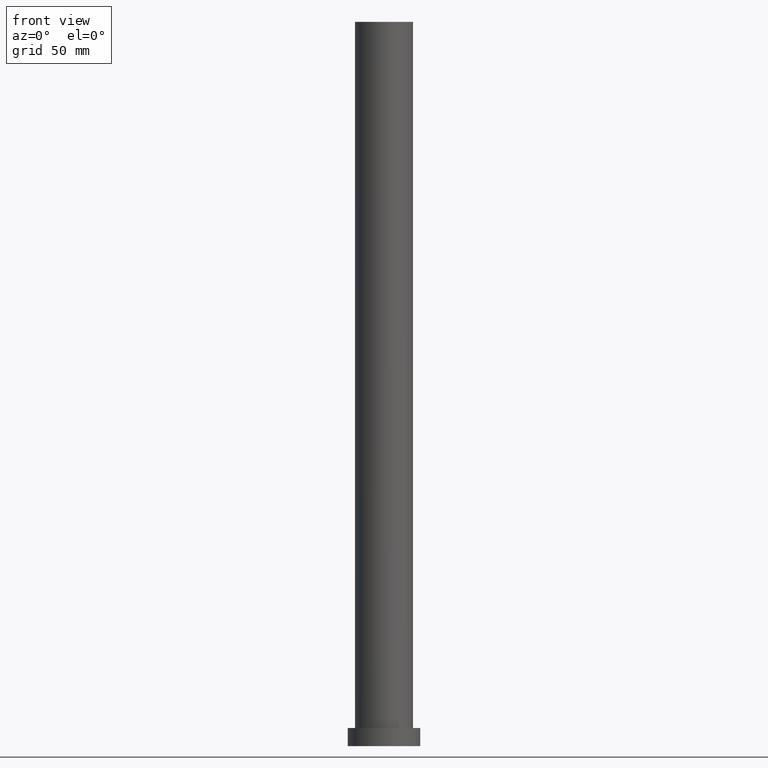
[diagram: clean part render]
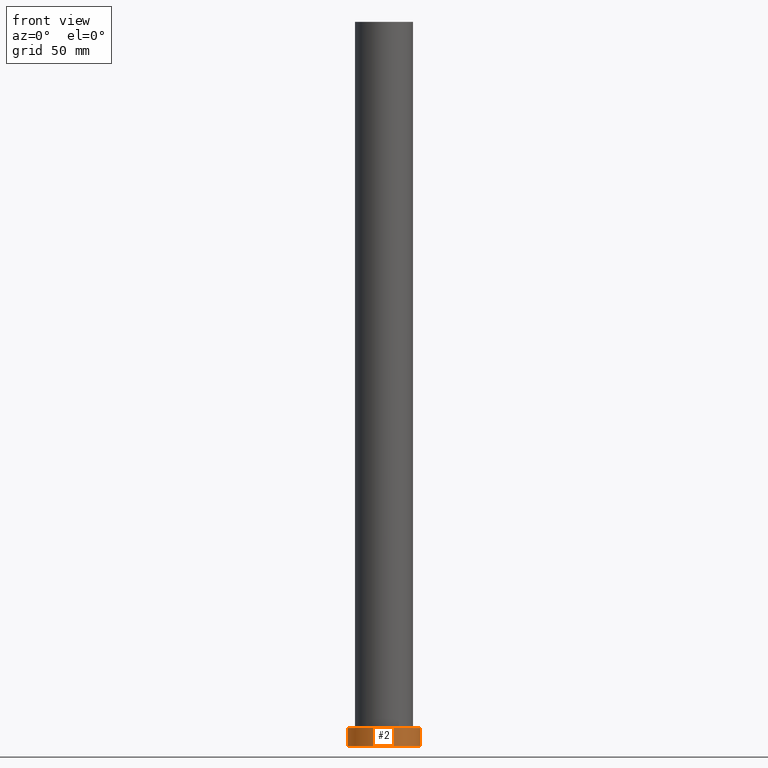
[diagram: same view with one face highlighted and labeled with its STEP entity id]
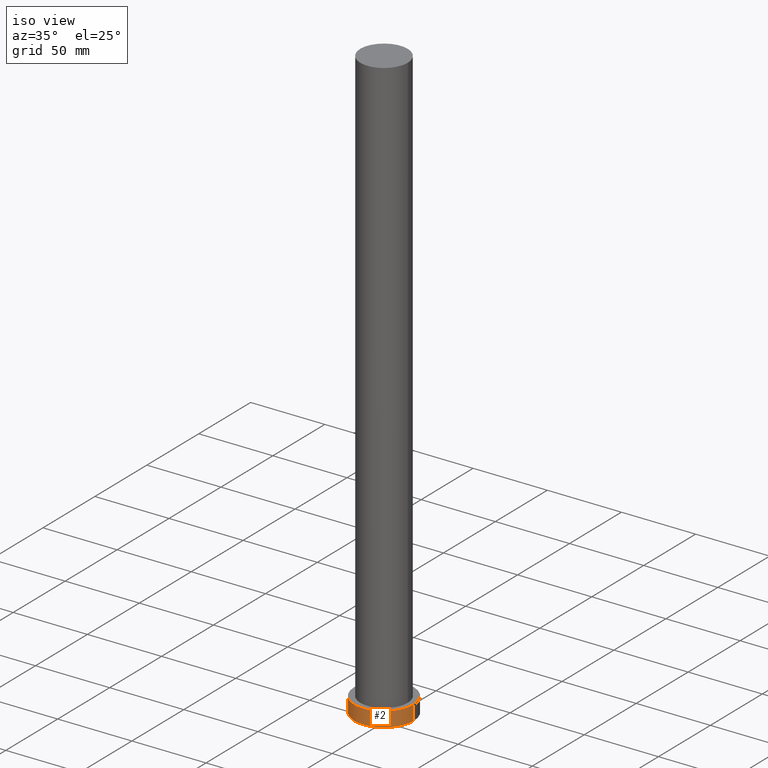
[diagram: same view with one face highlighted and labeled with its STEP entity id]
A machine part, front view. The second image highlights one B-rep face of the part: STEP entity #2.
A second angle (iso view) of the same face is appended — the face is thin or edge-on in the first view.
In plain terms, the highlighted cylindrical surface (edge-blend (fillet) strip) has radius 20 mm, axis along (-0, -0, -1).
Its self-contained STEP definition (entity closure, byte-faithful):
#2 = ADVANCED_FACE ( 'NONE', ( #168 ), #244, .T. ) ;
#9 = ORIENTED_EDGE ( 'NONE', *, *, #22, .F. ) ;
#16 = VECTOR ( 'NONE', #215, 1000.000000000000000 ) ;
#18 = CARTESIAN_POINT ( 'NONE',  ( 20.00000000000000000, 2.449293598294706513E-15, 10.00000000000000000 ) ) ;
#22 = EDGE_CURVE ( 'NONE', #140, #118, #36, .T. ) ;
#31 = CARTESIAN_POINT ( 'NONE',  ( 0.000000000000000000, 0.000000000000000000, 10.00000000000000000 ) ) ;
#36 = CIRCLE ( 'NONE', #136, 20.00000000000000000 ) ;
#40 = EDGE_CURVE ( 'NONE', #140, #159, #96, .T. ) ;
#50 = DIRECTION ( 'NONE',  ( -0.000000000000000000, -0.000000000000000000, -1.000000000000000000 ) ) ;
#52 = EDGE_CURVE ( 'NONE', #118, #171, #182, .T. ) ;
#68 = CARTESIAN_POINT ( 'NONE',  ( 0.000000000000000000, 0.000000000000000000, 0.000000000000000000 ) ) ;
#85 = DIRECTION ( 'NONE',  ( 0.000000000000000000, 0.000000000000000000, 1.000000000000000000 ) ) ;
#96 = LINE ( 'NONE', #250, #16 ) ;
#106 = AXIS2_PLACEMENT_3D ( 'NONE', #68, #85, #150 ) ;
#114 = ORIENTED_EDGE ( 'NONE', *, *, #52, .F. ) ;
#118 = VERTEX_POINT ( 'NONE', #121 ) ;
#121 = CARTESIAN_POINT ( 'NONE',  ( 20.00000000000000000, 2.449293598294706513E-15, 10.00000000000000000 ) ) ;
#136 = AXIS2_PLACEMENT_3D ( 'NONE', #31, #212, #147 ) ;
#140 = VERTEX_POINT ( 'NONE', #169 ) ;
#147 = DIRECTION ( 'NONE',  ( 1.000000000000000000, 0.000000000000000000, 0.000000000000000000 ) ) ;
#150 = DIRECTION ( 'NONE',  ( 1.000000000000000000, 0.000000000000000000, 0.000000000000000000 ) ) ;
#151 = CARTESIAN_POINT ( 'NONE',  ( -20.00000000000000000, 0.000000000000000000, 0.000000000000000000 ) ) ;
#155 = CARTESIAN_POINT ( 'NONE',  ( 0.000000000000000000, 0.000000000000000000, 10.00000000000000000 ) ) ;
#159 = VERTEX_POINT ( 'NONE', #151 ) ;
#168 = FACE_OUTER_BOUND ( 'NONE', #209, .T. ) ;
#169 = CARTESIAN_POINT ( 'NONE',  ( -20.00000000000000000, 0.000000000000000000, 10.00000000000000000 ) ) ;
#171 = VERTEX_POINT ( 'NONE', #246 ) ;
#174 = ORIENTED_EDGE ( 'NONE', *, *, #40, .T. ) ;
#182 = LINE ( 'NONE', #18, #220 ) ;
#190 = EDGE_CURVE ( 'NONE', #159, #171, #222, .T. ) ;
#200 = AXIS2_PLACEMENT_3D ( 'NONE', #155, #247, #228 ) ;
#209 = EDGE_LOOP ( 'NONE', ( #114, #9, #174, #248 ) ) ;
#212 = DIRECTION ( 'NONE',  ( 0.000000000000000000, 0.000000000000000000, 1.000000000000000000 ) ) ;
#215 = DIRECTION ( 'NONE',  ( -0.000000000000000000, -0.000000000000000000, -1.000000000000000000 ) ) ;
#220 = VECTOR ( 'NONE', #50, 1000.000000000000000 ) ;
#222 = CIRCLE ( 'NONE', #106, 20.00000000000000000 ) ;
#228 = DIRECTION ( 'NONE',  ( -1.000000000000000000, 0.000000000000000000, 0.000000000000000000 ) ) ;
#244 = CYLINDRICAL_SURFACE ( 'NONE', #200, 20.00000000000000000 ) ;
#246 = CARTESIAN_POINT ( 'NONE',  ( 20.00000000000000000, 2.449293598294706513E-15, 0.000000000000000000 ) ) ;
#247 = DIRECTION ( 'NONE',  ( -0.000000000000000000, -0.000000000000000000, -1.000000000000000000 ) ) ;
#248 = ORIENTED_EDGE ( 'NONE', *, *, #190, .T. ) ;
#250 = CARTESIAN_POINT ( 'NONE',  ( -20.00000000000000000, 0.000000000000000000, 10.00000000000000000 ) ) ;